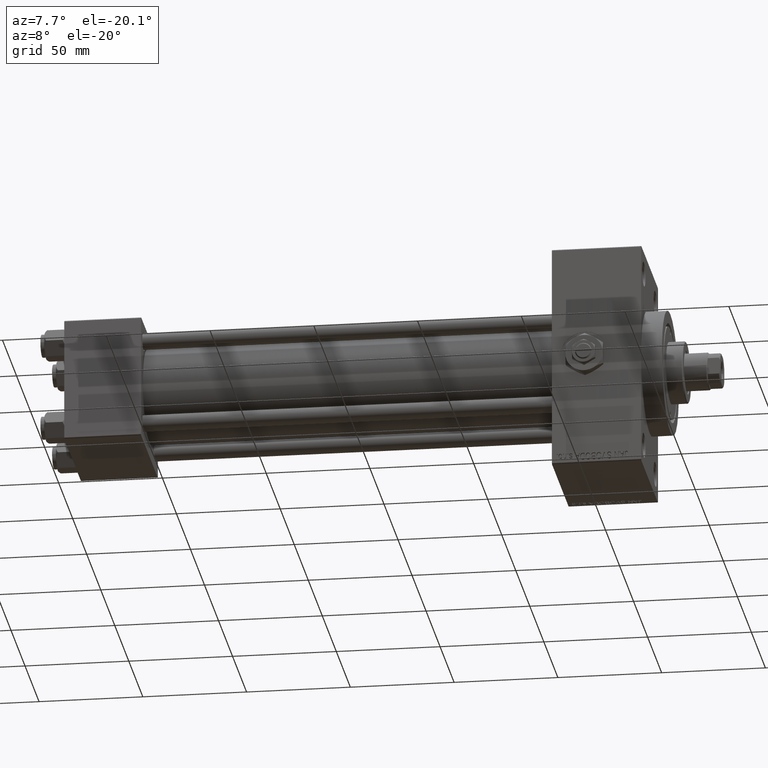
[diagram: clean part render]
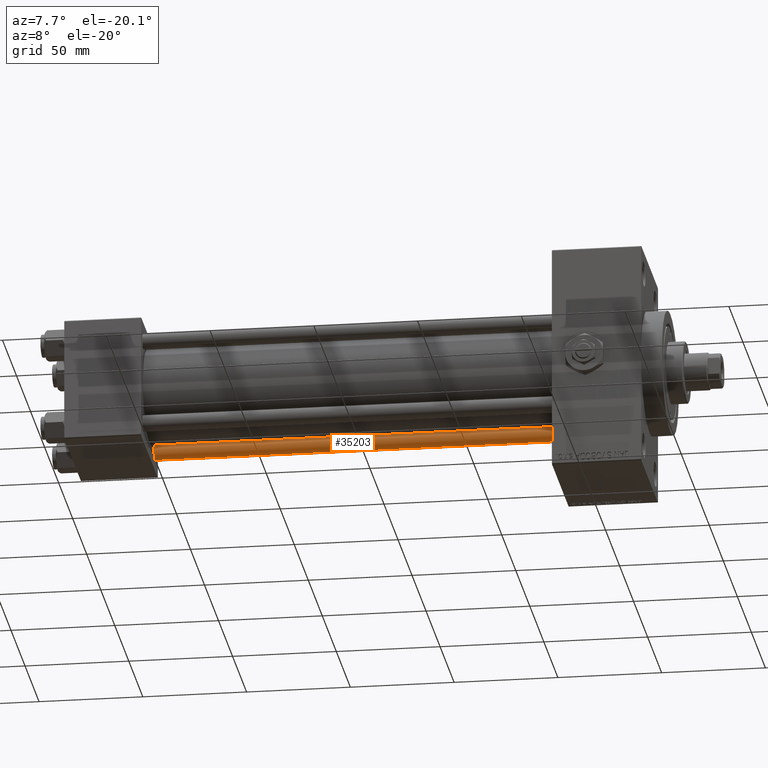
[diagram: same view with one face highlighted and labeled with its STEP entity id]
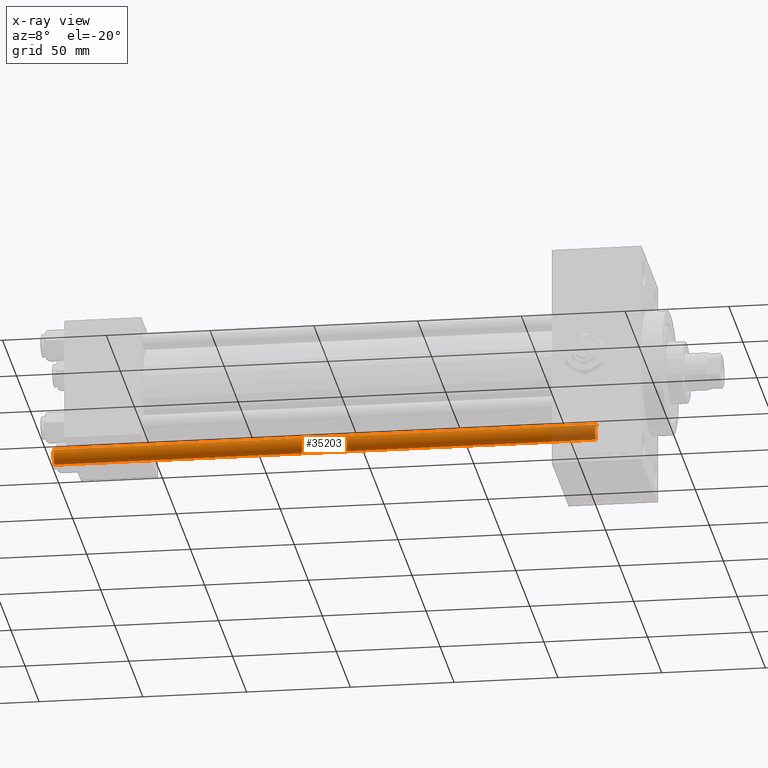
[diagram: x-ray of the same camera — body ghosted, the highlighted face saturated]
A machine part, auxiliary view. The second image highlights one B-rep face of the part: STEP entity #35203.
The next image is the same camera in x-ray: the body ghosted, the highlighted face saturated — about 8% of this face is hidden behind the body in this view.
In plain terms, the highlighted cylindrical surface (edge-blend (fillet) strip) has radius 4 mm, axis along (1, -0, 0).
Its self-contained STEP definition (entity closure, byte-faithful):
#139 = VECTOR ( 'NONE', #28471, 1000.000000000000000 ) ;
#310 = EDGE_CURVE ( 'NONE', #3825, #9557, #35099, .T. ) ;
#1573 = DIRECTION ( 'NONE',  ( 1.000000000000000000, 0.000000000000000000, 0.000000000000000000 ) ) ;
#1720 = CARTESIAN_POINT ( 'NONE',  ( -4.000000000000000000, 0.000000000000000000, 261.5000000000000000 ) ) ;
#2571 = CARTESIAN_POINT ( 'NONE',  ( 0.000000000000000000, 0.000000000000000000, 262.0000000000000000 ) ) ;
#3825 = VERTEX_POINT ( 'NONE', #3844 ) ;
#3844 = CARTESIAN_POINT ( 'NONE',  ( -4.000000000000000000, 0.000000000000000000, 0.5000000000000559552 ) ) ;
#4008 = DIRECTION ( 'NONE',  ( 1.000000000000000000, 0.000000000000000000, 0.000000000000000000 ) ) ;
#4176 = VECTOR ( 'NONE', #29405, 1000.000000000000000 ) ;
#4627 = EDGE_CURVE ( 'NONE', #14511, #22500, #28106, .T. ) ;
#7573 = CARTESIAN_POINT ( 'NONE',  ( 4.000000000000000000, 4.898587196589412829E-16, 261.5000000000000000 ) ) ;
#9557 = VERTEX_POINT ( 'NONE', #13224 ) ;
#9782 = CARTESIAN_POINT ( 'NONE',  ( -4.000000000000000000, 0.000000000000000000, 262.0000000000000000 ) ) ;
#9829 = LINE ( 'NONE', #21245, #139 ) ;
#11240 = DIRECTION ( 'NONE',  ( -0.000000000000000000, -0.000000000000000000, 1.000000000000000000 ) ) ;
#13224 = CARTESIAN_POINT ( 'NONE',  ( 4.000000000000000000, 4.898587196589412829E-16, 0.5000000000000559552 ) ) ;
#13583 = ORIENTED_EDGE ( 'NONE', *, *, #310, .T. ) ;
#13678 = AXIS2_PLACEMENT_3D ( 'NONE', #41810, #11240, #4008 ) ;
#14247 = LINE ( 'NONE', #9782, #4176 ) ;
#14511 = VERTEX_POINT ( 'NONE', #7573 ) ;
#16495 = DIRECTION ( 'NONE',  ( 0.000000000000000000, 0.000000000000000000, -1.000000000000000000 ) ) ;
#17745 = DIRECTION ( 'NONE',  ( -1.000000000000000000, 0.000000000000000000, 0.000000000000000000 ) ) ;
#19022 = AXIS2_PLACEMENT_3D ( 'NONE', #2571, #20721, #17745 ) ;
#20721 = DIRECTION ( 'NONE',  ( -0.000000000000000000, -0.000000000000000000, -1.000000000000000000 ) ) ;
#21245 = CARTESIAN_POINT ( 'NONE',  ( 4.000000000000000000, 4.898587196589412829E-16, 262.0000000000000000 ) ) ;
#22500 = VERTEX_POINT ( 'NONE', #1720 ) ;
#24958 = FACE_OUTER_BOUND ( 'NONE', #33177, .T. ) ;
#28106 = CIRCLE ( 'NONE', #32059, 4.000000000000000000 ) ;
#28471 = DIRECTION ( 'NONE',  ( -0.000000000000000000, -0.000000000000000000, -1.000000000000000000 ) ) ;
#29405 = DIRECTION ( 'NONE',  ( -0.000000000000000000, -0.000000000000000000, -1.000000000000000000 ) ) ;
#29819 = ORIENTED_EDGE ( 'NONE', *, *, #4627, .T. ) ;
#31664 = CARTESIAN_POINT ( 'NONE',  ( 0.000000000000000000, 0.000000000000000000, 261.5000000000000000 ) ) ;
#32059 = AXIS2_PLACEMENT_3D ( 'NONE', #31664, #16495, #1573 ) ;
#32470 = ORIENTED_EDGE ( 'NONE', *, *, #39651, .F. ) ;
#33177 = EDGE_LOOP ( 'NONE', ( #32470, #29819, #33462, #13583 ) ) ;
#33462 = ORIENTED_EDGE ( 'NONE', *, *, #41779, .T. ) ;
#35099 = CIRCLE ( 'NONE', #13678, 4.000000000000000000 ) ;
#35203 = ADVANCED_FACE ( 'NONE', ( #24958 ), #40119, .T. ) ;
#39651 = EDGE_CURVE ( 'NONE', #14511, #9557, #9829, .T. ) ;
#40119 = CYLINDRICAL_SURFACE ( 'NONE', #19022, 4.000000000000000000 ) ;
#41779 = EDGE_CURVE ( 'NONE', #22500, #3825, #14247, .T. ) ;
#41810 = CARTESIAN_POINT ( 'NONE',  ( 0.000000000000000000, 0.000000000000000000, 0.5000000000000559552 ) ) ;